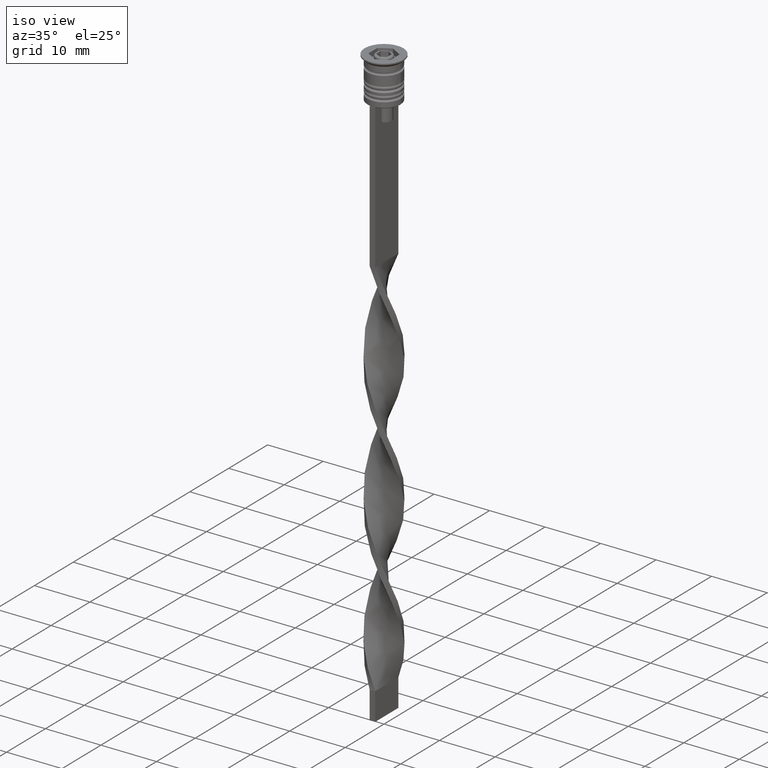
[diagram: clean part render]
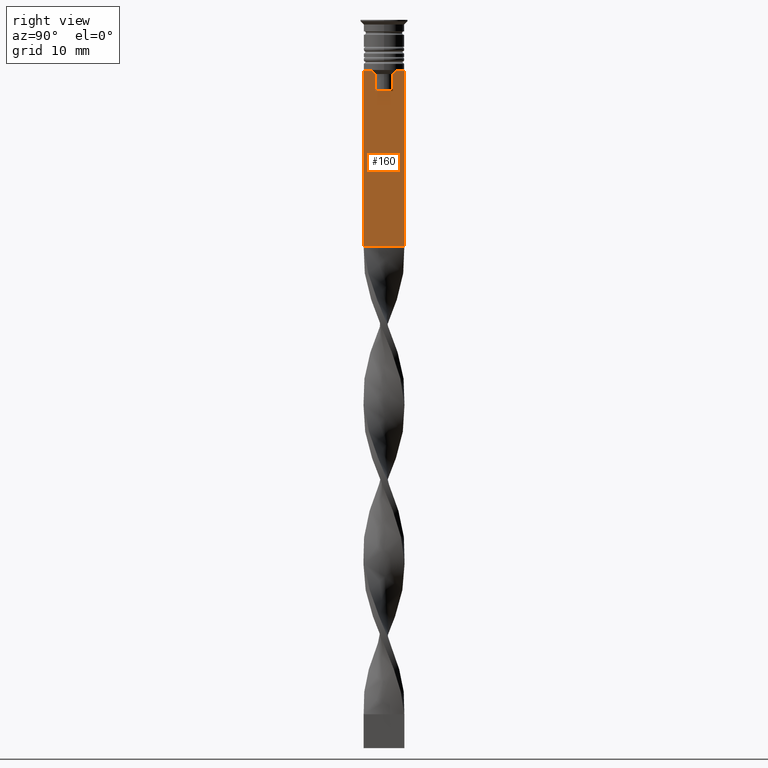
[diagram: tour spotlight — one face highlighted and labeled with its STEP entity id]
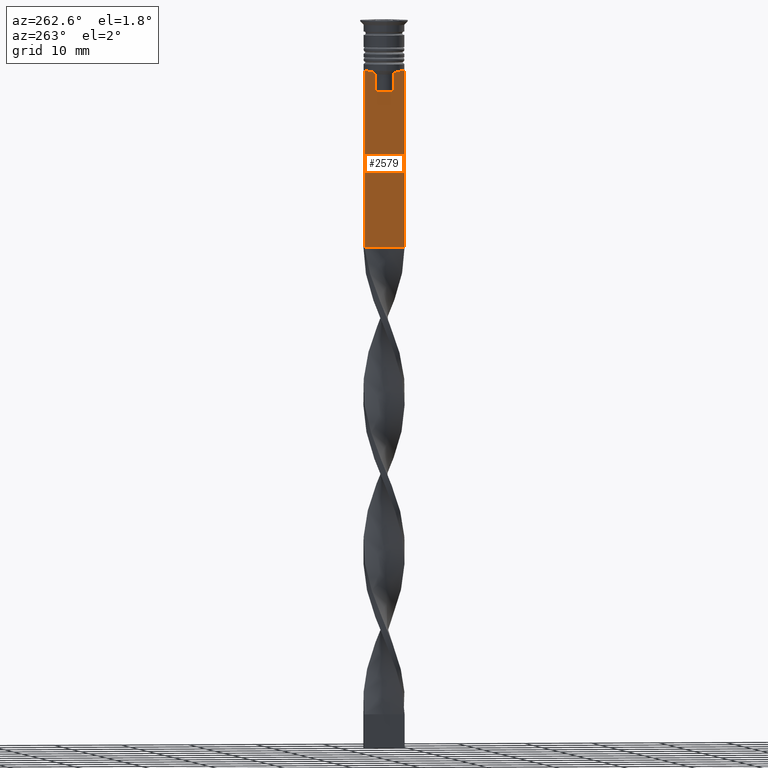
[diagram: tour spotlight — one face highlighted and labeled with its STEP entity id]
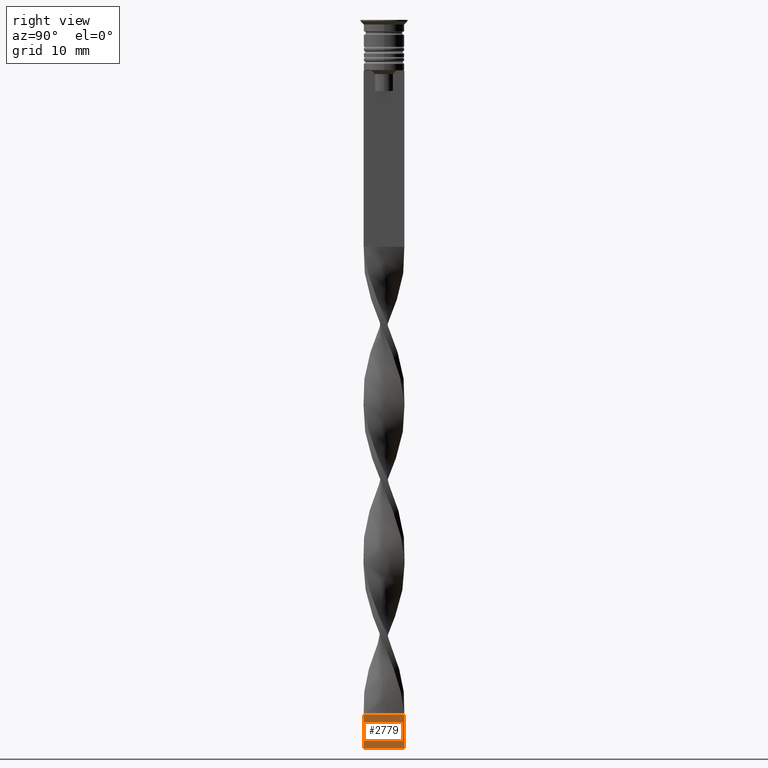
[diagram: tour spotlight — one face highlighted and labeled with its STEP entity id]
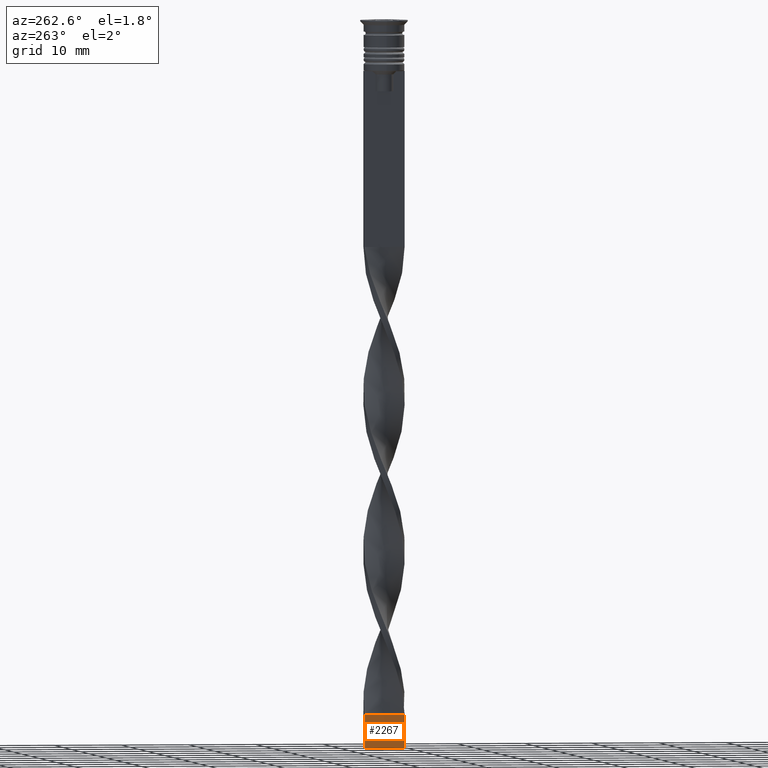
[diagram: tour spotlight — one face highlighted and labeled with its STEP entity id]
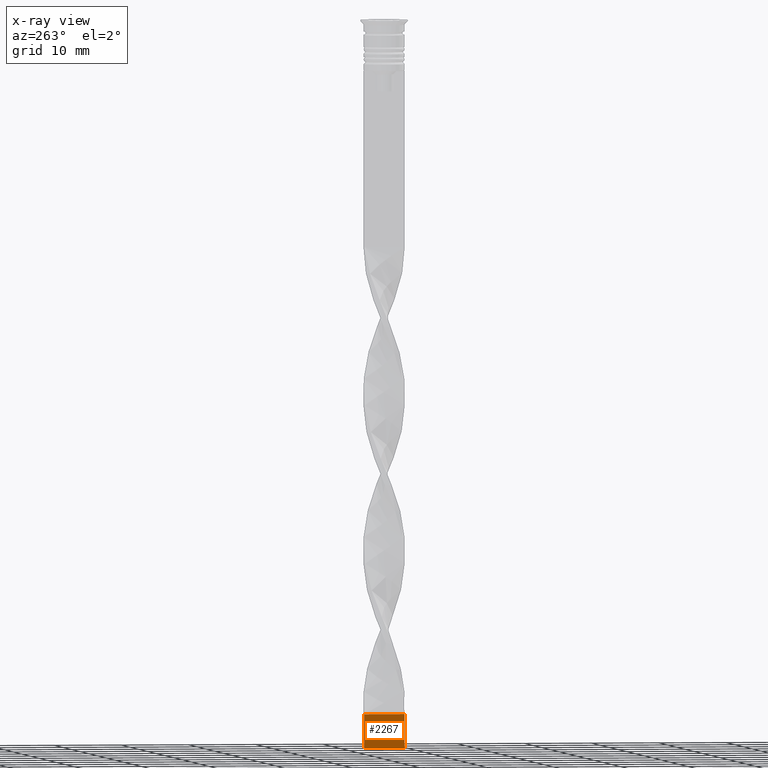
[diagram: x-ray of the same camera — body ghosted, this tour face saturated]
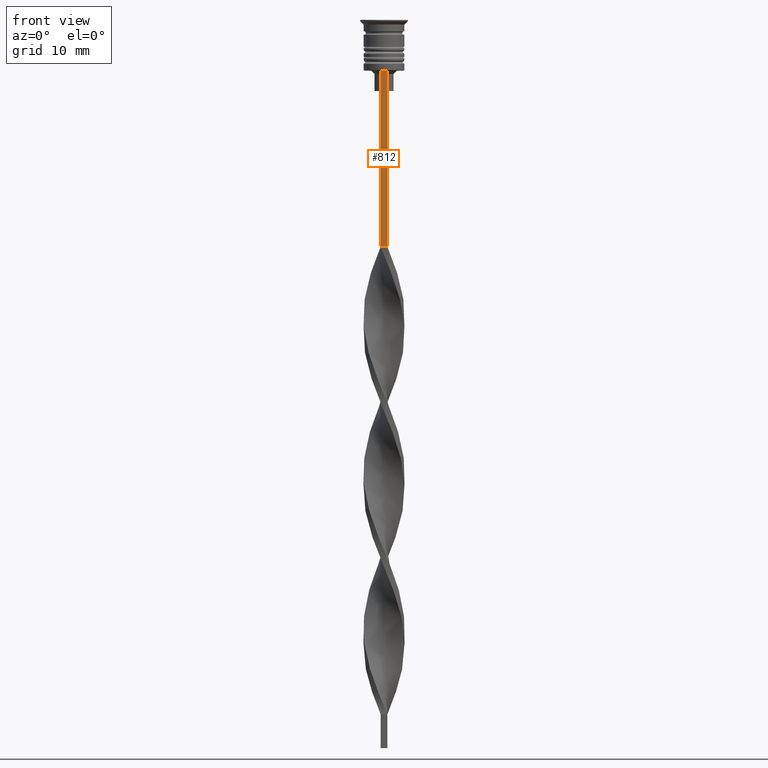
[diagram: tour spotlight — one face highlighted and labeled with its STEP entity id]
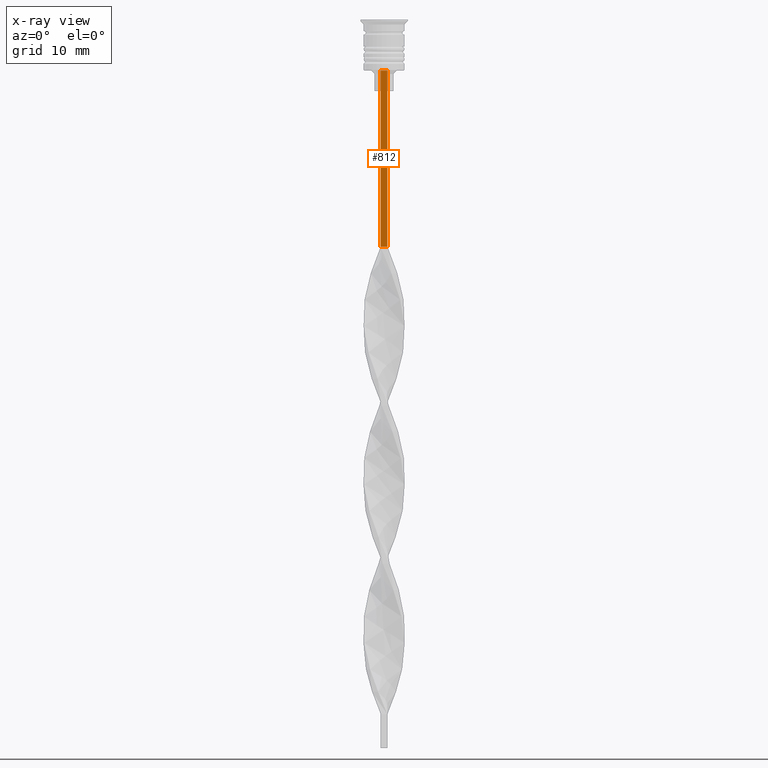
[diagram: x-ray of the same camera — body ghosted, this tour face saturated]
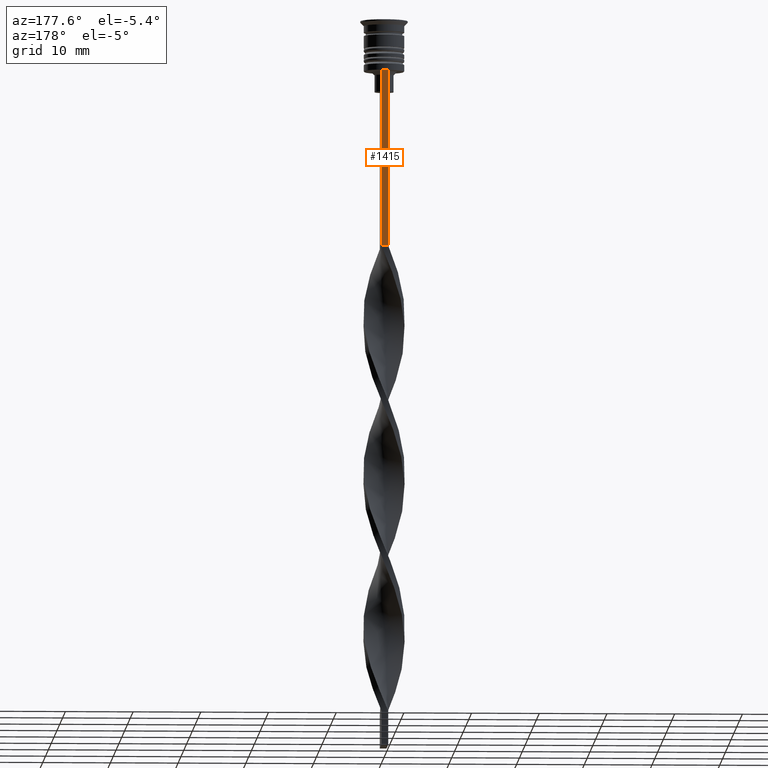
[diagram: tour spotlight — one face highlighted and labeled with its STEP entity id]
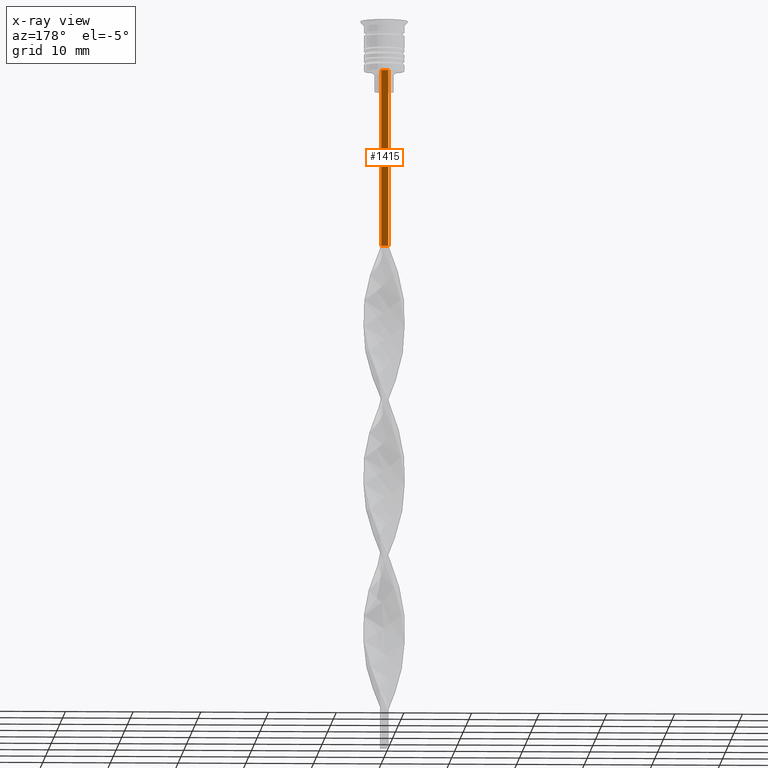
[diagram: x-ray of the same camera — body ghosted, this tour face saturated]
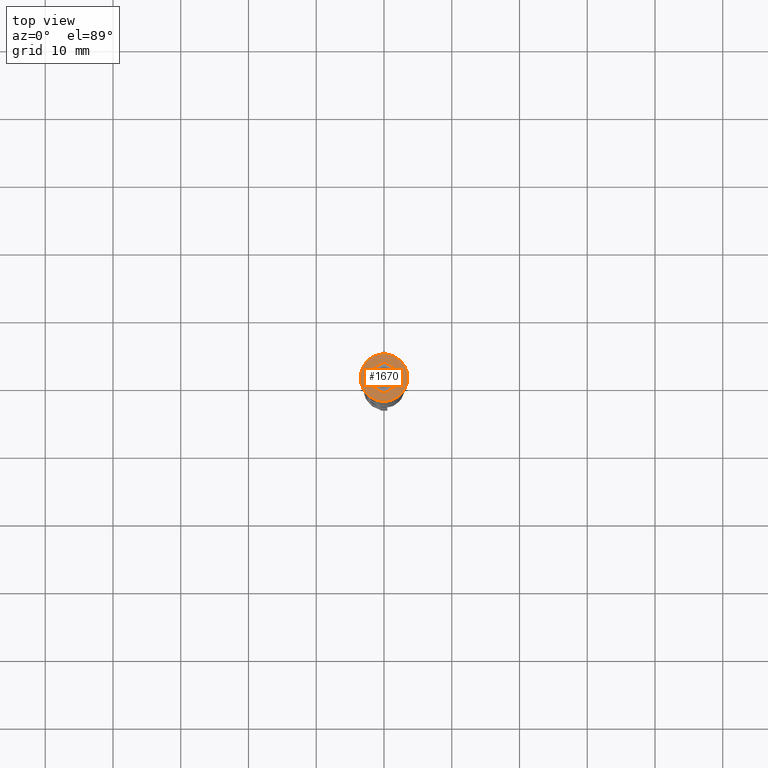
[diagram: tour spotlight — one face highlighted and labeled with its STEP entity id]
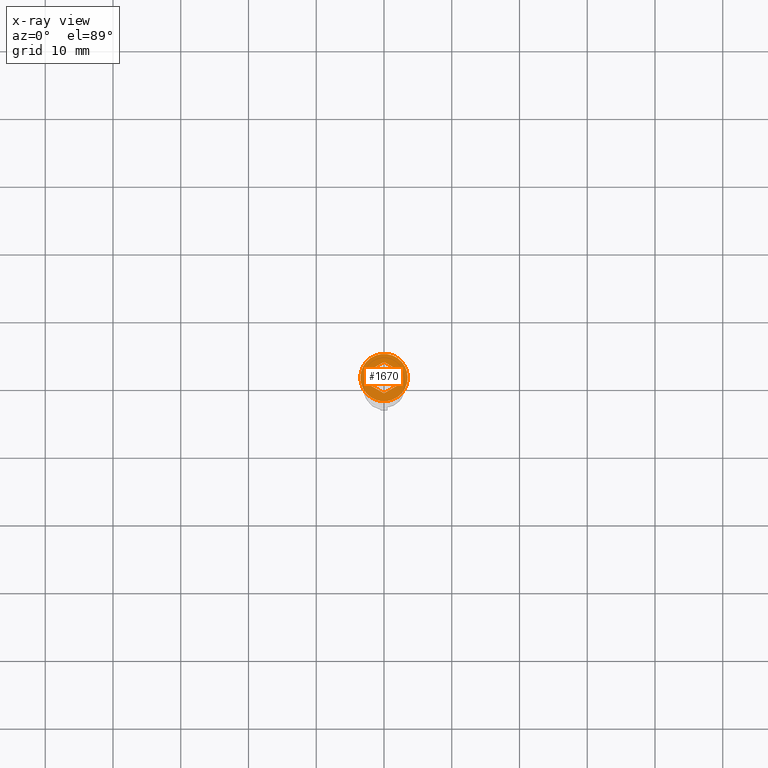
[diagram: x-ray of the same camera — body ghosted, this tour face saturated]
A machine part: a face-by-face anatomy tour. The part has 91 B-rep faces; the first image is the clean iso view, then the 7 largest visible faces are spotlighted one at a time (largest first), each with its STEP entity span.

Face 1 — right view, entity #160. In plain terms, the highlighted planar face has unit normal (-1, 0, 0).
Definition (entity closure, byte-faithful):
#29 = DIRECTION ( 'NONE',  ( 0.000000000000000000, -1.000000000000000000, 0.000000000000000000 ) ) ;
#160 = ADVANCED_FACE ( 'NONE', ( #1501 ), #2527, .F. ) ;
#168 = VERTEX_POINT ( 'NONE', #2937 ) ;
#180 = CARTESIAN_POINT ( 'NONE',  ( 0.4999999999999998890, -2.856571371417139904, -7.500000000000000000 ) ) ;
#188 = VECTOR ( 'NONE', #2503, 1000.000000000000000 ) ;
#268 = LINE ( 'NONE', #2890, #2197 ) ;
#274 = DIRECTION ( 'NONE',  ( 0.000000000000000000, 0.000000000000000000, 1.000000000000000000 ) ) ;
#307 = CARTESIAN_POINT ( 'NONE',  ( 0.4999999999999998890, -1.833030277982335754, -7.500000000000000000 ) ) ;
#345 = EDGE_CURVE ( 'NONE', #3175, #2554, #1795, .T. ) ;
#381 = LINE ( 'NONE', #1187, #188 ) ;
#398 = EDGE_CURVE ( 'NONE', #2392, #3263, #3216, .T. ) ;
#492 = DIRECTION ( 'NONE',  ( -0.000000000000000000, -0.000000000000000000, 1.000000000000000000 ) ) ;
#507 = CARTESIAN_POINT ( 'NONE',  ( 0.4999999999999998890, -1.307669683062199439, 0.000000000000000000 ) ) ;
#530 = DIRECTION ( 'NONE',  ( -1.000000000000000000, 0.000000000000000000, 0.000000000000000000 ) ) ;
#548 = CARTESIAN_POINT ( 'NONE',  ( 0.4999999999999998890, -3.000000000000000000, -33.50000000000000000 ) ) ;
#594 = CARTESIAN_POINT ( 'NONE',  ( 0.4999999999999998890, 1.833030277982335754, -7.500000000000000000 ) ) ;
#661 = CARTESIAN_POINT ( 'NONE',  ( 0.4999999999999998890, -3.000000000000000000, -7.500000000000000000 ) ) ;
#686 = CARTESIAN_POINT ( 'NONE',  ( 0.4999999999999998890, 3.000000000000000000, -7.500000000000000000 ) ) ;
#695 = DIRECTION ( 'NONE',  ( 0.000000000000000000, 0.000000000000000000, -1.000000000000000000 ) ) ;
#728 = VERTEX_POINT ( 'NONE', #548 ) ;
#766 = CARTESIAN_POINT ( 'NONE',  ( 0.4999999999999998890, 1.833030277982335754, -7.500000000000000000 ) ) ;
#791 = LINE ( 'NONE', #2345, #1020 ) ;
#841 = ORIENTED_EDGE ( 'NONE', *, *, #3189, .T. ) ;
#917 = CARTESIAN_POINT ( 'NONE',  ( 0.4999999999999998890, -1.484307477388859153, -7.835011508197190722 ) ) ;
#924 = CARTESIAN_POINT ( 'NONE',  ( 0.4999999999999998890, -1.307669683062199439, -10.49999999999999822 ) ) ;
#929 = CARTESIAN_POINT ( 'NONE',  ( 0.4999999999999998890, -3.000000000000000000, -1.417237469701779329 ) ) ;
#1020 = VECTOR ( 'NONE', #1856, 1000.000000000000000 ) ;
#1151 = ORIENTED_EDGE ( 'NONE', *, *, #1336, .T. ) ;
#1158 = ORIENTED_EDGE ( 'NONE', *, *, #2244, .T. ) ;
#1168 = VERTEX_POINT ( 'NONE', #686 ) ;
#1169 = EDGE_CURVE ( 'NONE', #168, #1688, #2330, .T. ) ;
#1187 = CARTESIAN_POINT ( 'NONE',  ( 0.4999999999999998890, -3.000000000000000000, -7.500000000000000000 ) ) ;
#1189 = LINE ( 'NONE', #661, #3073 ) ;
#1237 = DIRECTION ( 'NONE',  ( 0.000000000000000000, -1.000000000000000000, 0.000000000000000000 ) ) ;
#1240 = CARTESIAN_POINT ( 'NONE',  ( 0.4999999999999998890, -3.000000000000000000, -7.500000000000000000 ) ) ;
#1271 = EDGE_CURVE ( 'NONE', #3263, #168, #791, .T. ) ;
#1293 = CARTESIAN_POINT ( 'NONE',  ( 0.4999999999999998890, -1.833030277982335754, -7.500000000000000000 ) ) ;
#1327 = ORIENTED_EDGE ( 'NONE', *, *, #398, .T. ) ;
#1336 = EDGE_CURVE ( 'NONE', #1688, #2657, #1570, .T. ) ;
#1350 = VECTOR ( 'NONE', #695, 1000.000000000000000 ) ;
#1398 = VERTEX_POINT ( 'NONE', #1293 ) ;
#1405 = VECTOR ( 'NONE', #1237, 1000.000000000000000 ) ;
#1445 = LINE ( 'NONE', #2564, #2194 ) ;
#1495 = CARTESIAN_POINT ( 'NONE',  ( 0.4999999999999998890, -3.000000000000000000, -7.500000000000000000 ) ) ;
#1501 = FACE_OUTER_BOUND ( 'NONE', #2160, .T. ) ;
#1544 = ORIENTED_EDGE ( 'NONE', *, *, #3309, .T. ) ;
#1552 = ORIENTED_EDGE ( 'NONE', *, *, #2639, .T. ) ;
#1570 = LINE ( 'NONE', #507, #2137 ) ;
#1600 = CARTESIAN_POINT ( 'NONE',  ( 0.4999999999999998890, -1.307669683062199439, -8.000000000000000000 ) ) ;
#1646 = CARTESIAN_POINT ( 'NONE',  ( 0.4999999999999998890, -1.659011726860414093, -7.667884880598472286 ) ) ;
#1665 = VERTEX_POINT ( 'NONE', #3253 ) ;
#1688 = VERTEX_POINT ( 'NONE', #924 ) ;
#1710 = LINE ( 'NONE', #929, #1350 ) ;
#1726 = LINE ( 'NONE', #2567, #2189 ) ;
#1727 = ORIENTED_EDGE ( 'NONE', *, *, #1169, .T. ) ;
#1758 = CARTESIAN_POINT ( 'NONE',  ( 0.4999999999999998890, 1.659046061654642967, -7.667851756010362507 ) ) ;
#1795 = LINE ( 'NONE', #1495, #1405 ) ;
#1829 = CARTESIAN_POINT ( 'NONE',  ( 0.4999999999999998890, 1.484355510416485835, -7.834966642958598015 ) ) ;
#1856 = DIRECTION ( 'NONE',  ( 0.000000000000000000, 0.000000000000000000, -1.000000000000000000 ) ) ;
#1912 = VECTOR ( 'NONE', #3042, 1000.000000000000000 ) ;
#1972 = DIRECTION ( 'NONE',  ( 0.000000000000000000, -1.000000000000000000, 0.000000000000000000 ) ) ;
#2117 = ORIENTED_EDGE ( 'NONE', *, *, #3109, .T. ) ;
#2130 = DIRECTION ( 'NONE',  ( 0.000000000000000000, 1.000000000000000000, 0.000000000000000000 ) ) ;
#2137 = VECTOR ( 'NONE', #492, 1000.000000000000000 ) ;
#2160 = EDGE_LOOP ( 'NONE', ( #2117, #1327, #2524, #1727, #1151, #1158, #841, #2288, #2708, #1544, #3372, #1552 ) ) ;
#2189 = VECTOR ( 'NONE', #2588, 1000.000000000000000 ) ;
#2194 = VECTOR ( 'NONE', #1972, 1000.000000000000000 ) ;
#2197 = VECTOR ( 'NONE', #2130, 1000.000000000000000 ) ;
#2244 = EDGE_CURVE ( 'NONE', #2657, #1398, #3053, .T. ) ;
#2264 = CARTESIAN_POINT ( 'NONE',  ( 0.4999999999999998890, -3.000000000000000000, -1.417237469701779329 ) ) ;
#2286 = CARTESIAN_POINT ( 'NONE',  ( 0.4999999999999998890, 1.307669683062199439, -8.000000000000000000 ) ) ;
#2288 = ORIENTED_EDGE ( 'NONE', *, *, #345, .T. ) ;
#2330 = LINE ( 'NONE', #2815, #1912 ) ;
#2337 = CARTESIAN_POINT ( 'NONE',  ( 0.4999999999999998890, 2.856571371417139904, -7.500000000000000000 ) ) ;
#2345 = CARTESIAN_POINT ( 'NONE',  ( 0.4999999999999998890, 1.307669683062199439, 0.000000000000000000 ) ) ;
#2392 = VERTEX_POINT ( 'NONE', #594 ) ;
#2485 = EDGE_CURVE ( 'NONE', #1168, #1665, #1726, .T. ) ;
#2503 = DIRECTION ( 'NONE',  ( 0.000000000000000000, -1.000000000000000000, 0.000000000000000000 ) ) ;
#2524 = ORIENTED_EDGE ( 'NONE', *, *, #1271, .T. ) ;
#2527 = PLANE ( 'NONE',  #2798 ) ;
#2554 = VERTEX_POINT ( 'NONE', #1240 ) ;
#2564 = CARTESIAN_POINT ( 'NONE',  ( 0.4999999999999998890, -3.000000000000000000, -7.500000000000000000 ) ) ;
#2567 = CARTESIAN_POINT ( 'NONE',  ( 0.4999999999999998890, 3.000000000000000000, -1.417237469701779329 ) ) ;
#2588 = DIRECTION ( 'NONE',  ( 0.000000000000000000, 0.000000000000000000, -1.000000000000000000 ) ) ;
#2639 = EDGE_CURVE ( 'NONE', #1168, #3445, #1189, .T. ) ;
#2657 = VERTEX_POINT ( 'NONE', #1600 ) ;
#2708 = ORIENTED_EDGE ( 'NONE', *, *, #3105, .T. ) ;
#2730 = CARTESIAN_POINT ( 'NONE',  ( 0.4999999999999998890, -1.307669683062199439, -8.000000000000000000 ) ) ;
#2798 = AXIS2_PLACEMENT_3D ( 'NONE', #2264, #530, #274 ) ;
#2815 = CARTESIAN_POINT ( 'NONE',  ( 0.4999999999999998890, 1.399999999999997691, -10.49999999999999822 ) ) ;
#2824 = CARTESIAN_POINT ( 'NONE',  ( 0.4999999999999998890, 1.307669683062199439, -8.000000000000000000 ) ) ;
#2890 = CARTESIAN_POINT ( 'NONE',  ( 0.4999999999999998890, -3.000000000000000000, -33.50000000000000000 ) ) ;
#2937 = CARTESIAN_POINT ( 'NONE',  ( 0.4999999999999998890, 1.307669683062199439, -10.49999999999999822 ) ) ;
#3042 = DIRECTION ( 'NONE',  ( 0.000000000000000000, -1.000000000000000000, 0.000000000000000000 ) ) ;
#3053 = B_SPLINE_CURVE_WITH_KNOTS ( 'NONE', 3,
 ( #2730, #917, #1646, #307 ),
 .UNSPECIFIED., .F., .F.,
 ( 4, 4 ),
 ( 0.007225659348748082224, 0.007950554640278054835 ),
 .UNSPECIFIED. ) ;
#3073 = VECTOR ( 'NONE', #29, 1000.000000000000000 ) ;
#3105 = EDGE_CURVE ( 'NONE', #2554, #728, #1710, .T. ) ;
#3109 = EDGE_CURVE ( 'NONE', #3445, #2392, #1445, .T. ) ;
#3175 = VERTEX_POINT ( 'NONE', #180 ) ;
#3189 = EDGE_CURVE ( 'NONE', #1398, #3175, #381, .T. ) ;
#3216 = B_SPLINE_CURVE_WITH_KNOTS ( 'NONE', 3,
 ( #766, #1758, #1829, #2824 ),
 .UNSPECIFIED., .F., .F.,
 ( 4, 4 ),
 ( 0.003278537493109848298, 0.004003794023484941178 ),
 .UNSPECIFIED. ) ;
#3253 = CARTESIAN_POINT ( 'NONE',  ( 0.4999999999999998890, 3.000000000000000000, -33.50000000000000000 ) ) ;
#3263 = VERTEX_POINT ( 'NONE', #2286 ) ;
#3309 = EDGE_CURVE ( 'NONE', #728, #1665, #268, .T. ) ;
#3372 = ORIENTED_EDGE ( 'NONE', *, *, #2485, .F. ) ;
#3445 = VERTEX_POINT ( 'NONE', #2337 ) ;

Face 2 — auxiliary view, entity #2579. In plain terms, the highlighted planar face has unit normal (-1, 0, 0).
Definition (entity closure, byte-faithful):
#3 = EDGE_LOOP ( 'NONE', ( #2672, #466, #2398, #1394, #2028, #2642, #629, #1119, #449, #1406, #1081, #223 ) ) ;
#13 = LINE ( 'NONE', #1063, #1413 ) ;
#84 = LINE ( 'NONE', #2693, #1183 ) ;
#177 = CARTESIAN_POINT ( 'NONE',  ( -0.5000000000000001110, 1.307669683062199217, -10.49999999999999822 ) ) ;
#193 = CARTESIAN_POINT ( 'NONE',  ( -0.5000000000000001110, -1.659011726860414093, -7.667884880598472286 ) ) ;
#223 = ORIENTED_EDGE ( 'NONE', *, *, #2617, .F. ) ;
#263 = VERTEX_POINT ( 'NONE', #2401 ) ;
#425 = VERTEX_POINT ( 'NONE', #1774 ) ;
#433 = CARTESIAN_POINT ( 'NONE',  ( -0.5000000000000001110, -3.000000000000000000, -33.50000000000000000 ) ) ;
#441 = CARTESIAN_POINT ( 'NONE',  ( -0.5000000000000001110, -1.484307477388859153, -7.835011508197190722 ) ) ;
#449 = ORIENTED_EDGE ( 'NONE', *, *, #1086, .F. ) ;
#457 = VECTOR ( 'NONE', #3339, 1000.000000000000000 ) ;
#466 = ORIENTED_EDGE ( 'NONE', *, *, #1357, .F. ) ;
#499 = VERTEX_POINT ( 'NONE', #177 ) ;
#515 = VECTOR ( 'NONE', #2556, 1000.000000000000000 ) ;
#564 = CARTESIAN_POINT ( 'NONE',  ( -0.5000000000000001110, 1.659046061654642523, -7.667851756010361619 ) ) ;
#576 = DIRECTION ( 'NONE',  ( 0.000000000000000000, -1.000000000000000000, 0.000000000000000000 ) ) ;
#578 = VERTEX_POINT ( 'NONE', #3182 ) ;
#595 = VERTEX_POINT ( 'NONE', #1095 ) ;
#610 = CARTESIAN_POINT ( 'NONE',  ( -0.5000000000000001110, -3.000000000000000000, -1.417237469701779329 ) ) ;
#611 = EDGE_CURVE ( 'NONE', #662, #1055, #2358, .T. ) ;
#629 = ORIENTED_EDGE ( 'NONE', *, *, #1028, .F. ) ;
#639 = EDGE_CURVE ( 'NONE', #2489, #263, #2426, .T. ) ;
#658 = LINE ( 'NONE', #3086, #457 ) ;
#662 = VERTEX_POINT ( 'NONE', #2703 ) ;
#707 = CARTESIAN_POINT ( 'NONE',  ( -0.5000000000000001110, -1.307669683062199217, -8.000000000000000000 ) ) ;
#787 = VERTEX_POINT ( 'NONE', #2180 ) ;
#803 = CARTESIAN_POINT ( 'NONE',  ( -0.5000000000000001110, 1.484355510416485391, -7.834966642958598015 ) ) ;
#811 = CARTESIAN_POINT ( 'NONE',  ( -0.5000000000000001110, -3.000000000000000000, -7.500000000000000000 ) ) ;
#833 = CARTESIAN_POINT ( 'NONE',  ( -0.5000000000000001110, 1.307669683062199217, -8.000000000000000000 ) ) ;
#855 = VECTOR ( 'NONE', #2299, 1000.000000000000000 ) ;
#996 = DIRECTION ( 'NONE',  ( 0.000000000000000000, 0.000000000000000000, -1.000000000000000000 ) ) ;
#1028 = EDGE_CURVE ( 'NONE', #595, #425, #3315, .T. ) ;
#1055 = VERTEX_POINT ( 'NONE', #2575 ) ;
#1063 = CARTESIAN_POINT ( 'NONE',  ( -0.5000000000000001110, -3.000000000000000000, -7.500000000000000000 ) ) ;
#1064 = VERTEX_POINT ( 'NONE', #707 ) ;
#1081 = ORIENTED_EDGE ( 'NONE', *, *, #2991, .F. ) ;
#1086 = EDGE_CURVE ( 'NONE', #1064, #1446, #2394, .T. ) ;
#1095 = CARTESIAN_POINT ( 'NONE',  ( -0.5000000000000001110, -2.856571371417139904, -7.500000000000000000 ) ) ;
#1119 = ORIENTED_EDGE ( 'NONE', *, *, #2925, .F. ) ;
#1183 = VECTOR ( 'NONE', #1677, 1000.000000000000000 ) ;
#1211 = EDGE_CURVE ( 'NONE', #787, #1064, #3093, .T. ) ;
#1220 = CARTESIAN_POINT ( 'NONE',  ( -0.5000000000000001110, 1.307669683062199217, 0.000000000000000000 ) ) ;
#1255 = CARTESIAN_POINT ( 'NONE',  ( -0.5000000000000001110, -3.000000000000000000, -1.417237469701779329 ) ) ;
#1304 = CARTESIAN_POINT ( 'NONE',  ( -0.5000000000000001110, 3.000000000000000000, -1.417237469701779329 ) ) ;
#1346 = VECTOR ( 'NONE', #996, 1000.000000000000000 ) ;
#1357 = EDGE_CURVE ( 'NONE', #578, #662, #13, .T. ) ;
#1394 = ORIENTED_EDGE ( 'NONE', *, *, #639, .T. ) ;
#1406 = ORIENTED_EDGE ( 'NONE', *, *, #1211, .F. ) ;
#1413 = VECTOR ( 'NONE', #2059, 1000.000000000000000 ) ;
#1446 = VERTEX_POINT ( 'NONE', #2340 ) ;
#1484 = DIRECTION ( 'NONE',  ( -1.000000000000000000, 0.000000000000000000, 0.000000000000000000 ) ) ;
#1489 = CARTESIAN_POINT ( 'NONE',  ( -0.5000000000000001110, -3.000000000000000000, -7.500000000000000000 ) ) ;
#1497 = CARTESIAN_POINT ( 'NONE',  ( -0.5000000000000001110, 3.000000000000000000, -7.500000000000000000 ) ) ;
#1677 = DIRECTION ( 'NONE',  ( 0.000000000000000000, -1.000000000000000000, 0.000000000000000000 ) ) ;
#1680 = LINE ( 'NONE', #610, #1848 ) ;
#1741 = VECTOR ( 'NONE', #2882, 1000.000000000000000 ) ;
#1774 = CARTESIAN_POINT ( 'NONE',  ( -0.5000000000000001110, -3.000000000000000000, -7.500000000000000000 ) ) ;
#1776 = LINE ( 'NONE', #1220, #1346 ) ;
#1827 = CARTESIAN_POINT ( 'NONE',  ( -0.5000000000000001110, 1.833030277982335532, -7.500000000000000000 ) ) ;
#1848 = VECTOR ( 'NONE', #2175, 1000.000000000000000 ) ;
#1851 = VECTOR ( 'NONE', #576, 1000.000000000000000 ) ;
#1936 = LINE ( 'NONE', #2173, #1851 ) ;
#2027 = FACE_OUTER_BOUND ( 'NONE', #3, .T. ) ;
#2028 = ORIENTED_EDGE ( 'NONE', *, *, #3157, .F. ) ;
#2047 = EDGE_CURVE ( 'NONE', #2489, #578, #2918, .T. ) ;
#2059 = DIRECTION ( 'NONE',  ( 0.000000000000000000, -1.000000000000000000, 0.000000000000000000 ) ) ;
#2173 = CARTESIAN_POINT ( 'NONE',  ( -0.5000000000000001110, 1.399999999999997691, -10.49999999999999822 ) ) ;
#2175 = DIRECTION ( 'NONE',  ( 0.000000000000000000, 0.000000000000000000, -1.000000000000000000 ) ) ;
#2180 = CARTESIAN_POINT ( 'NONE',  ( -0.5000000000000001110, -1.307669683062199217, -10.49999999999999822 ) ) ;
#2299 = DIRECTION ( 'NONE',  ( 0.000000000000000000, -1.000000000000000000, 0.000000000000000000 ) ) ;
#2318 = CARTESIAN_POINT ( 'NONE',  ( -0.5000000000000001110, -1.833030277982335532, -7.500000000000000000 ) ) ;
#2324 = EDGE_CURVE ( 'NONE', #425, #3248, #1680, .T. ) ;
#2340 = CARTESIAN_POINT ( 'NONE',  ( -0.5000000000000001110, -1.833030277982335532, -7.500000000000000000 ) ) ;
#2358 = B_SPLINE_CURVE_WITH_KNOTS ( 'NONE', 3,
 ( #1827, #564, #803, #833 ),
 .UNSPECIFIED., .F., .F.,
 ( 4, 4 ),
 ( 0.003278537493109840491, 0.004003794023484932504 ),
 .UNSPECIFIED. ) ;
#2388 = DIRECTION ( 'NONE',  ( 0.000000000000000000, 0.000000000000000000, -1.000000000000000000 ) ) ;
#2394 = B_SPLINE_CURVE_WITH_KNOTS ( 'NONE', 3,
 ( #2832, #441, #193, #2318 ),
 .UNSPECIFIED., .F., .F.,
 ( 4, 4 ),
 ( 0.007225659348748070081, 0.007950554640278040958 ),
 .UNSPECIFIED. ) ;
#2398 = ORIENTED_EDGE ( 'NONE', *, *, #2047, .F. ) ;
#2401 = CARTESIAN_POINT ( 'NONE',  ( -0.5000000000000001110, 3.000000000000000000, -33.50000000000000000 ) ) ;
#2426 = LINE ( 'NONE', #1304, #2747 ) ;
#2489 = VERTEX_POINT ( 'NONE', #1497 ) ;
#2538 = PLANE ( 'NONE',  #2904 ) ;
#2556 = DIRECTION ( 'NONE',  ( -0.000000000000000000, -0.000000000000000000, 1.000000000000000000 ) ) ;
#2575 = CARTESIAN_POINT ( 'NONE',  ( -0.5000000000000001110, 1.307669683062199217, -8.000000000000000000 ) ) ;
#2579 = ADVANCED_FACE ( 'NONE', ( #2027 ), #2538, .T. ) ;
#2617 = EDGE_CURVE ( 'NONE', #1055, #499, #1776, .T. ) ;
#2642 = ORIENTED_EDGE ( 'NONE', *, *, #2324, .F. ) ;
#2672 = ORIENTED_EDGE ( 'NONE', *, *, #611, .F. ) ;
#2693 = CARTESIAN_POINT ( 'NONE',  ( -0.5000000000000001110, -3.000000000000000000, -7.500000000000000000 ) ) ;
#2703 = CARTESIAN_POINT ( 'NONE',  ( -0.5000000000000001110, 1.833030277982335532, -7.500000000000000000 ) ) ;
#2747 = VECTOR ( 'NONE', #2388, 1000.000000000000000 ) ;
#2832 = CARTESIAN_POINT ( 'NONE',  ( -0.5000000000000001110, -1.307669683062199217, -8.000000000000000000 ) ) ;
#2882 = DIRECTION ( 'NONE',  ( 0.000000000000000000, -1.000000000000000000, 0.000000000000000000 ) ) ;
#2904 = AXIS2_PLACEMENT_3D ( 'NONE', #1255, #1484, #3090 ) ;
#2918 = LINE ( 'NONE', #811, #1741 ) ;
#2925 = EDGE_CURVE ( 'NONE', #1446, #595, #84, .T. ) ;
#2991 = EDGE_CURVE ( 'NONE', #499, #787, #1936, .T. ) ;
#3086 = CARTESIAN_POINT ( 'NONE',  ( -0.5000000000000001110, -3.000000000000000000, -33.50000000000000000 ) ) ;
#3090 = DIRECTION ( 'NONE',  ( 0.000000000000000000, 0.000000000000000000, 1.000000000000000000 ) ) ;
#3093 = LINE ( 'NONE', #3348, #515 ) ;
#3157 = EDGE_CURVE ( 'NONE', #3248, #263, #658, .T. ) ;
#3182 = CARTESIAN_POINT ( 'NONE',  ( -0.5000000000000001110, 2.856571371417139904, -7.500000000000000000 ) ) ;
#3248 = VERTEX_POINT ( 'NONE', #433 ) ;
#3315 = LINE ( 'NONE', #1489, #855 ) ;
#3339 = DIRECTION ( 'NONE',  ( 0.000000000000000000, 1.000000000000000000, 0.000000000000000000 ) ) ;
#3348 = CARTESIAN_POINT ( 'NONE',  ( -0.5000000000000001110, -1.307669683062199217, 0.000000000000000000 ) ) ;

Face 3 — right view, entity #2779. In plain terms, the highlighted planar face has unit normal (-1, 0, 0).
Definition (entity closure, byte-faithful):
#5 = CARTESIAN_POINT ( 'NONE',  ( 0.4999999999999997780, -3.000000000000000000, -107.5000000000000142 ) ) ;
#176 = EDGE_CURVE ( 'NONE', #2243, #2338, #1051, .T. ) ;
#189 = CARTESIAN_POINT ( 'NONE',  ( 0.5000000000000002220, 1.000000000000000000, -102.5000000000000142 ) ) ;
#272 = CARTESIAN_POINT ( 'NONE',  ( 0.5000000000000004441, 3.000000000000000000, -107.5000000000000142 ) ) ;
#351 = DIRECTION ( 'NONE',  ( -1.000000000000000000, 1.084202172485504434E-16, 0.000000000000000000 ) ) ;
#627 = VECTOR ( 'NONE', #1312, 1000.000000000000000 ) ;
#633 = CARTESIAN_POINT ( 'NONE',  ( 0.5000000000000004441, 3.000000000000000000, -107.5000000000000142 ) ) ;
#717 = EDGE_CURVE ( 'NONE', #1334, #1319, #781, .T. ) ;
#741 = DIRECTION ( 'NONE',  ( -0.000000000000000000, -0.000000000000000000, 1.000000000000000000 ) ) ;
#781 = LINE ( 'NONE', #5, #2967 ) ;
#1051 = LINE ( 'NONE', #2623, #1287 ) ;
#1234 = AXIS2_PLACEMENT_3D ( 'NONE', #3001, #351, #1421 ) ;
#1287 = VECTOR ( 'NONE', #741, 1000.000000000000000 ) ;
#1312 = DIRECTION ( 'NONE',  ( -1.084202172485504434E-16, -1.000000000000000000, 0.000000000000000000 ) ) ;
#1319 = VERTEX_POINT ( 'NONE', #2917 ) ;
#1334 = VERTEX_POINT ( 'NONE', #1835 ) ;
#1340 = EDGE_CURVE ( 'NONE', #2243, #1334, #1343, .T. ) ;
#1343 = LINE ( 'NONE', #272, #627 ) ;
#1421 = DIRECTION ( 'NONE',  ( -1.084202172485504434E-16, -1.000000000000000000, 0.000000000000000000 ) ) ;
#1623 = EDGE_LOOP ( 'NONE', ( #3371, #2465, #1762, #2775 ) ) ;
#1762 = ORIENTED_EDGE ( 'NONE', *, *, #1340, .F. ) ;
#1835 = CARTESIAN_POINT ( 'NONE',  ( 0.4999999999999997780, -3.000000000000000000, -107.5000000000000142 ) ) ;
#1937 = EDGE_CURVE ( 'NONE', #2338, #1319, #2980, .T. ) ;
#2207 = FACE_OUTER_BOUND ( 'NONE', #1623, .T. ) ;
#2243 = VERTEX_POINT ( 'NONE', #633 ) ;
#2338 = VERTEX_POINT ( 'NONE', #2435 ) ;
#2404 = DIRECTION ( 'NONE',  ( -0.000000000000000000, -0.000000000000000000, 1.000000000000000000 ) ) ;
#2435 = CARTESIAN_POINT ( 'NONE',  ( 0.5000000000000004441, 3.000000000000000000, -102.5000000000000142 ) ) ;
#2465 = ORIENTED_EDGE ( 'NONE', *, *, #717, .F. ) ;
#2557 = CARTESIAN_POINT ( 'NONE',  ( 0.5000000000000004441, 3.000000000000000000, -102.5000000000000142 ) ) ;
#2623 = CARTESIAN_POINT ( 'NONE',  ( 0.5000000000000004441, 3.000000000000000000, -107.5000000000000142 ) ) ;
#2775 = ORIENTED_EDGE ( 'NONE', *, *, #176, .T. ) ;
#2779 = ADVANCED_FACE ( 'NONE', ( #2207 ), #3258, .F. ) ;
#2917 = CARTESIAN_POINT ( 'NONE',  ( 0.4999999999999997780, -3.000000000000000000, -102.5000000000000142 ) ) ;
#2967 = VECTOR ( 'NONE', #2404, 1000.000000000000000 ) ;
#2980 = B_SPLINE_CURVE_WITH_KNOTS ( 'NONE', 3,
 ( #2557, #189, #3108, #3125 ),
 .UNSPECIFIED., .F., .F.,
 ( 4, 4 ),
 ( 0.000000000000000000, 1.000000000000000000 ),
 .UNSPECIFIED. ) ;
#3001 = CARTESIAN_POINT ( 'NONE',  ( 0.5000000000000004441, 3.000000000000000000, -107.5000000000000142 ) ) ;
#3108 = CARTESIAN_POINT ( 'NONE',  ( 0.5000000000000000000, -1.000000000000000000, -102.5000000000000142 ) ) ;
#3125 = CARTESIAN_POINT ( 'NONE',  ( 0.4999999999999997780, -3.000000000000000000, -102.5000000000000142 ) ) ;
#3258 = PLANE ( 'NONE',  #1234 ) ;
#3371 = ORIENTED_EDGE ( 'NONE', *, *, #1937, .T. ) ;

Face 4 — auxiliary view, entity #2267. An x-ray twin of the same camera follows (body ghosted, this face saturated) — the face is partly hidden behind the body. In plain terms, the highlighted planar face has unit normal (1, -0, 0).
Definition (entity closure, byte-faithful):
#4 = ORIENTED_EDGE ( 'NONE', *, *, #705, .T. ) ;
#104 = PLANE ( 'NONE',  #3288 ) ;
#258 = CARTESIAN_POINT ( 'NONE',  ( -0.4999999999999995559, 3.000000000000000000, -107.5000000000000142 ) ) ;
#346 = VECTOR ( 'NONE', #2077, 1000.000000000000000 ) ;
#389 = B_SPLINE_CURVE_WITH_KNOTS ( 'NONE', 3,
 ( #520, #2650, #1320, #2666 ),
 .UNSPECIFIED., .F., .F.,
 ( 4, 4 ),
 ( 0.000000000000000000, 1.000000000000000000 ),
 .UNSPECIFIED. ) ;
#395 = LINE ( 'NONE', #1217, #797 ) ;
#520 = CARTESIAN_POINT ( 'NONE',  ( -0.5000000000000002220, -3.000000000000000000, -102.5000000000000142 ) ) ;
#529 = EDGE_CURVE ( 'NONE', #2041, #3367, #2547, .T. ) ;
#546 = VERTEX_POINT ( 'NONE', #3373 ) ;
#703 = CARTESIAN_POINT ( 'NONE',  ( -0.5000000000000002220, -3.000000000000000000, -107.5000000000000142 ) ) ;
#705 = EDGE_CURVE ( 'NONE', #546, #3367, #389, .T. ) ;
#751 = EDGE_LOOP ( 'NONE', ( #4, #1922, #2699, #2765 ) ) ;
#797 = VECTOR ( 'NONE', #3306, 1000.000000000000000 ) ;
#1156 = FACE_OUTER_BOUND ( 'NONE', #751, .T. ) ;
#1216 = VERTEX_POINT ( 'NONE', #703 ) ;
#1217 = CARTESIAN_POINT ( 'NONE',  ( -0.5000000000000002220, -3.000000000000000000, -107.5000000000000142 ) ) ;
#1320 = CARTESIAN_POINT ( 'NONE',  ( -0.4999999999999997780, 1.000000000000000000, -102.5000000000000142 ) ) ;
#1384 = DIRECTION ( 'NONE',  ( 1.000000000000000000, -1.084202172485504434E-16, 0.000000000000000000 ) ) ;
#1437 = CARTESIAN_POINT ( 'NONE',  ( -0.5000000000000002220, -3.000000000000000000, -107.5000000000000142 ) ) ;
#1546 = LINE ( 'NONE', #2671, #346 ) ;
#1922 = ORIENTED_EDGE ( 'NONE', *, *, #529, .F. ) ;
#1939 = DIRECTION ( 'NONE',  ( 1.084202172485504434E-16, 1.000000000000000000, 0.000000000000000000 ) ) ;
#2041 = VERTEX_POINT ( 'NONE', #258 ) ;
#2077 = DIRECTION ( 'NONE',  ( -0.000000000000000000, -0.000000000000000000, 1.000000000000000000 ) ) ;
#2267 = ADVANCED_FACE ( 'NONE', ( #1156 ), #104, .F. ) ;
#2547 = LINE ( 'NONE', #3065, #2571 ) ;
#2571 = VECTOR ( 'NONE', #2580, 1000.000000000000000 ) ;
#2580 = DIRECTION ( 'NONE',  ( -0.000000000000000000, -0.000000000000000000, 1.000000000000000000 ) ) ;
#2650 = CARTESIAN_POINT ( 'NONE',  ( -0.5000000000000000000, -1.000000000000000000, -102.5000000000000142 ) ) ;
#2666 = CARTESIAN_POINT ( 'NONE',  ( -0.4999999999999995559, 3.000000000000000000, -102.5000000000000142 ) ) ;
#2671 = CARTESIAN_POINT ( 'NONE',  ( -0.5000000000000002220, -3.000000000000000000, -107.5000000000000142 ) ) ;
#2690 = EDGE_CURVE ( 'NONE', #1216, #546, #1546, .T. ) ;
#2699 = ORIENTED_EDGE ( 'NONE', *, *, #3255, .F. ) ;
#2765 = ORIENTED_EDGE ( 'NONE', *, *, #2690, .T. ) ;
#2873 = CARTESIAN_POINT ( 'NONE',  ( -0.4999999999999995559, 3.000000000000000000, -102.5000000000000142 ) ) ;
#3065 = CARTESIAN_POINT ( 'NONE',  ( -0.4999999999999995559, 3.000000000000000000, -107.5000000000000142 ) ) ;
#3255 = EDGE_CURVE ( 'NONE', #1216, #2041, #395, .T. ) ;
#3288 = AXIS2_PLACEMENT_3D ( 'NONE', #1437, #1384, #1939 ) ;
#3306 = DIRECTION ( 'NONE',  ( 1.084202172485504434E-16, 1.000000000000000000, 0.000000000000000000 ) ) ;
#3367 = VERTEX_POINT ( 'NONE', #2873 ) ;
#3373 = CARTESIAN_POINT ( 'NONE',  ( -0.5000000000000002220, -3.000000000000000000, -102.5000000000000142 ) ) ;

Face 5 — front view, entity #812. An x-ray twin of the same camera follows (body ghosted, this face saturated) — the face is partly hidden behind the body. In plain terms, the highlighted planar face has unit normal (0, -1, -0).
Definition (entity closure, byte-faithful):
#92 = DIRECTION ( 'NONE',  ( 0.000000000000000000, -1.000000000000000000, -0.000000000000000000 ) ) ;
#425 = VERTEX_POINT ( 'NONE', #1774 ) ;
#433 = CARTESIAN_POINT ( 'NONE',  ( -0.5000000000000001110, -3.000000000000000000, -33.50000000000000000 ) ) ;
#541 = ORIENTED_EDGE ( 'NONE', *, *, #2665, .F. ) ;
#548 = CARTESIAN_POINT ( 'NONE',  ( 0.4999999999999998890, -3.000000000000000000, -33.50000000000000000 ) ) ;
#601 = FACE_OUTER_BOUND ( 'NONE', #2897, .T. ) ;
#610 = CARTESIAN_POINT ( 'NONE',  ( -0.5000000000000001110, -3.000000000000000000, -1.417237469701779329 ) ) ;
#620 = DIRECTION ( 'NONE',  ( 0.000000000000000000, 0.000000000000000000, -1.000000000000000000 ) ) ;
#695 = DIRECTION ( 'NONE',  ( 0.000000000000000000, 0.000000000000000000, -1.000000000000000000 ) ) ;
#728 = VERTEX_POINT ( 'NONE', #548 ) ;
#812 = ADVANCED_FACE ( 'NONE', ( #601 ), #1704, .T. ) ;
#929 = CARTESIAN_POINT ( 'NONE',  ( 0.4999999999999998890, -3.000000000000000000, -1.417237469701779329 ) ) ;
#940 = EDGE_CURVE ( 'NONE', #728, #3248, #2233, .T. ) ;
#1014 = CARTESIAN_POINT ( 'NONE',  ( 0.4999999999999998890, -3.000000000000000000, -7.500000000000000000 ) ) ;
#1240 = CARTESIAN_POINT ( 'NONE',  ( 0.4999999999999998890, -3.000000000000000000, -7.500000000000000000 ) ) ;
#1350 = VECTOR ( 'NONE', #695, 1000.000000000000000 ) ;
#1562 = VECTOR ( 'NONE', #2095, 1000.000000000000000 ) ;
#1680 = LINE ( 'NONE', #610, #1848 ) ;
#1704 = PLANE ( 'NONE',  #1736 ) ;
#1710 = LINE ( 'NONE', #929, #1350 ) ;
#1736 = AXIS2_PLACEMENT_3D ( 'NONE', #3231, #92, #620 ) ;
#1774 = CARTESIAN_POINT ( 'NONE',  ( -0.5000000000000001110, -3.000000000000000000, -7.500000000000000000 ) ) ;
#1848 = VECTOR ( 'NONE', #2175, 1000.000000000000000 ) ;
#1858 = ORIENTED_EDGE ( 'NONE', *, *, #3105, .F. ) ;
#2095 = DIRECTION ( 'NONE',  ( 1.000000000000000000, 0.000000000000000000, 0.000000000000000000 ) ) ;
#2135 = LINE ( 'NONE', #1014, #1562 ) ;
#2175 = DIRECTION ( 'NONE',  ( 0.000000000000000000, 0.000000000000000000, -1.000000000000000000 ) ) ;
#2233 = LINE ( 'NONE', #3283, #2469 ) ;
#2295 = ORIENTED_EDGE ( 'NONE', *, *, #2324, .T. ) ;
#2324 = EDGE_CURVE ( 'NONE', #425, #3248, #1680, .T. ) ;
#2469 = VECTOR ( 'NONE', #2866, 1000.000000000000000 ) ;
#2554 = VERTEX_POINT ( 'NONE', #1240 ) ;
#2665 = EDGE_CURVE ( 'NONE', #425, #2554, #2135, .T. ) ;
#2757 = ORIENTED_EDGE ( 'NONE', *, *, #940, .F. ) ;
#2866 = DIRECTION ( 'NONE',  ( -1.000000000000000000, 0.000000000000000000, 0.000000000000000000 ) ) ;
#2897 = EDGE_LOOP ( 'NONE', ( #541, #2295, #2757, #1858 ) ) ;
#3105 = EDGE_CURVE ( 'NONE', #2554, #728, #1710, .T. ) ;
#3231 = CARTESIAN_POINT ( 'NONE',  ( 0.4999999999999998890, -3.000000000000000000, -1.417237469701779329 ) ) ;
#3248 = VERTEX_POINT ( 'NONE', #433 ) ;
#3283 = CARTESIAN_POINT ( 'NONE',  ( 0.4999999999999998890, -3.000000000000000000, -33.50000000000000000 ) ) ;

Face 6 — auxiliary view, entity #1415. An x-ray twin of the same camera follows (body ghosted, this face saturated) — the face is partly hidden behind the body. In plain terms, the highlighted planar face has unit normal (0, -1, -0).
Definition (entity closure, byte-faithful):
#58 = DIRECTION ( 'NONE',  ( 0.000000000000000000, 0.000000000000000000, -1.000000000000000000 ) ) ;
#263 = VERTEX_POINT ( 'NONE', #2401 ) ;
#352 = ORIENTED_EDGE ( 'NONE', *, *, #2920, .T. ) ;
#357 = DIRECTION ( 'NONE',  ( 0.000000000000000000, -1.000000000000000000, -0.000000000000000000 ) ) ;
#514 = VECTOR ( 'NONE', #3275, 1000.000000000000000 ) ;
#525 = EDGE_CURVE ( 'NONE', #1665, #263, #2050, .T. ) ;
#619 = VECTOR ( 'NONE', #1810, 1000.000000000000000 ) ;
#639 = EDGE_CURVE ( 'NONE', #2489, #263, #2426, .T. ) ;
#686 = CARTESIAN_POINT ( 'NONE',  ( 0.4999999999999998890, 3.000000000000000000, -7.500000000000000000 ) ) ;
#1168 = VERTEX_POINT ( 'NONE', #686 ) ;
#1304 = CARTESIAN_POINT ( 'NONE',  ( -0.5000000000000001110, 3.000000000000000000, -1.417237469701779329 ) ) ;
#1341 = LINE ( 'NONE', #2468, #514 ) ;
#1415 = ADVANCED_FACE ( 'NONE', ( #3277 ), #1423, .F. ) ;
#1423 = PLANE ( 'NONE',  #1626 ) ;
#1497 = CARTESIAN_POINT ( 'NONE',  ( -0.5000000000000001110, 3.000000000000000000, -7.500000000000000000 ) ) ;
#1626 = AXIS2_PLACEMENT_3D ( 'NONE', #2972, #357, #58 ) ;
#1665 = VERTEX_POINT ( 'NONE', #3253 ) ;
#1726 = LINE ( 'NONE', #2567, #2189 ) ;
#1810 = DIRECTION ( 'NONE',  ( -1.000000000000000000, 0.000000000000000000, 0.000000000000000000 ) ) ;
#2050 = LINE ( 'NONE', #2068, #619 ) ;
#2068 = CARTESIAN_POINT ( 'NONE',  ( 0.4999999999999998890, 3.000000000000000000, -33.50000000000000000 ) ) ;
#2189 = VECTOR ( 'NONE', #2588, 1000.000000000000000 ) ;
#2388 = DIRECTION ( 'NONE',  ( 0.000000000000000000, 0.000000000000000000, -1.000000000000000000 ) ) ;
#2401 = CARTESIAN_POINT ( 'NONE',  ( -0.5000000000000001110, 3.000000000000000000, -33.50000000000000000 ) ) ;
#2426 = LINE ( 'NONE', #1304, #2747 ) ;
#2468 = CARTESIAN_POINT ( 'NONE',  ( 0.4999999999999998890, 3.000000000000000000, -7.500000000000000000 ) ) ;
#2485 = EDGE_CURVE ( 'NONE', #1168, #1665, #1726, .T. ) ;
#2489 = VERTEX_POINT ( 'NONE', #1497 ) ;
#2567 = CARTESIAN_POINT ( 'NONE',  ( 0.4999999999999998890, 3.000000000000000000, -1.417237469701779329 ) ) ;
#2588 = DIRECTION ( 'NONE',  ( 0.000000000000000000, 0.000000000000000000, -1.000000000000000000 ) ) ;
#2595 = ORIENTED_EDGE ( 'NONE', *, *, #525, .T. ) ;
#2747 = VECTOR ( 'NONE', #2388, 1000.000000000000000 ) ;
#2920 = EDGE_CURVE ( 'NONE', #2489, #1168, #1341, .T. ) ;
#2972 = CARTESIAN_POINT ( 'NONE',  ( 0.4999999999999998890, 3.000000000000000000, -1.417237469701779329 ) ) ;
#3120 = ORIENTED_EDGE ( 'NONE', *, *, #639, .F. ) ;
#3207 = ORIENTED_EDGE ( 'NONE', *, *, #2485, .T. ) ;
#3253 = CARTESIAN_POINT ( 'NONE',  ( 0.4999999999999998890, 3.000000000000000000, -33.50000000000000000 ) ) ;
#3275 = DIRECTION ( 'NONE',  ( 1.000000000000000000, 0.000000000000000000, 0.000000000000000000 ) ) ;
#3277 = FACE_OUTER_BOUND ( 'NONE', #3423, .T. ) ;
#3423 = EDGE_LOOP ( 'NONE', ( #3120, #352, #3207, #2595 ) ) ;

Face 7 — top view, entity #1670. An x-ray twin of the same camera follows (body ghosted, this face saturated) — the face is partly hidden behind the body. In plain terms, the highlighted planar face has unit normal (0, -0, 1).
Definition (entity closure, byte-faithful):
#62 = VERTEX_POINT ( 'NONE', #157 ) ;
#69 = LINE ( 'NONE', #1931, #2688 ) ;
#75 = AXIS2_PLACEMENT_3D ( 'NONE', #2849, #210, #144 ) ;
#124 = CARTESIAN_POINT ( 'NONE',  ( 0.000000000000000000, 0.000000000000000000, 0.000000000000000000 ) ) ;
#144 = DIRECTION ( 'NONE',  ( 1.000000000000000000, 0.000000000000000000, 0.000000000000000000 ) ) ;
#157 = CARTESIAN_POINT ( 'NONE',  ( -2.168404344971008868E-16, 2.309401076758502480, 0.000000000000000000 ) ) ;
#210 = DIRECTION ( 'NONE',  ( -0.000000000000000000, -0.000000000000000000, 1.000000000000000000 ) ) ;
#298 = EDGE_LOOP ( 'NONE', ( #1887, #1659, #1634, #1380, #1279, #1635 ) ) ;
#461 = AXIS2_PLACEMENT_3D ( 'NONE', #1572, #3193, #2100 ) ;
#479 = DIRECTION ( 'NONE',  ( 0.8660254037844387076, -0.4999999999999997780, 0.000000000000000000 ) ) ;
#534 = VERTEX_POINT ( 'NONE', #724 ) ;
#571 = VECTOR ( 'NONE', #3033, 1000.000000000000000 ) ;
#628 = CARTESIAN_POINT ( 'NONE',  ( -2.000000000000000000, 1.154700538379251018, 0.000000000000000000 ) ) ;
#634 = VERTEX_POINT ( 'NONE', #1868 ) ;
#685 = VECTOR ( 'NONE', #3366, 1000.000000000000227 ) ;
#690 = CARTESIAN_POINT ( 'NONE',  ( 3.997386383800531884E-16, -2.309401076758503368, 0.000000000000000000 ) ) ;
#711 = CARTESIAN_POINT ( 'NONE',  ( -2.000000000000000000, 1.154700538379251018, 0.000000000000000000 ) ) ;
#724 = CARTESIAN_POINT ( 'NONE',  ( 2.000000000000000000, -1.154700538379251684, 0.000000000000000000 ) ) ;
#829 = EDGE_CURVE ( 'NONE', #62, #3379, #69, .T. ) ;
#844 = EDGE_LOOP ( 'NONE', ( #2188, #1344 ) ) ;
#876 = VERTEX_POINT ( 'NONE', #1917 ) ;
#896 = CARTESIAN_POINT ( 'NONE',  ( -2.000000000000000000, -1.154700538379252128, 0.000000000000000000 ) ) ;
#960 = EDGE_CURVE ( 'NONE', #1817, #876, #1181, .T. ) ;
#965 = VERTEX_POINT ( 'NONE', #690 ) ;
#1024 = EDGE_CURVE ( 'NONE', #2994, #965, #1733, .T. ) ;
#1164 = FACE_OUTER_BOUND ( 'NONE', #844, .T. ) ;
#1181 = CIRCLE ( 'NONE', #75, 3.500000000000000000 ) ;
#1279 = ORIENTED_EDGE ( 'NONE', *, *, #2782, .F. ) ;
#1344 = ORIENTED_EDGE ( 'NONE', *, *, #2043, .T. ) ;
#1380 = ORIENTED_EDGE ( 'NONE', *, *, #1024, .F. ) ;
#1416 = DIRECTION ( 'NONE',  ( 0.000000000000000000, -0.000000000000000000, 1.000000000000000000 ) ) ;
#1521 = CARTESIAN_POINT ( 'NONE',  ( -2.000000000000000000, -1.154700538379252128, 0.000000000000000000 ) ) ;
#1572 = CARTESIAN_POINT ( 'NONE',  ( 0.000000000000000000, 0.000000000000000000, 0.000000000000000000 ) ) ;
#1634 = ORIENTED_EDGE ( 'NONE', *, *, #1923, .F. ) ;
#1635 = ORIENTED_EDGE ( 'NONE', *, *, #829, .F. ) ;
#1638 = EDGE_CURVE ( 'NONE', #534, #634, #2266, .T. ) ;
#1659 = ORIENTED_EDGE ( 'NONE', *, *, #1638, .F. ) ;
#1670 = ADVANCED_FACE ( 'NONE', ( #2999, #1164 ), #2234, .T. ) ;
#1686 = VECTOR ( 'NONE', #479, 1000.000000000000114 ) ;
#1733 = LINE ( 'NONE', #1521, #1686 ) ;
#1817 = VERTEX_POINT ( 'NONE', #2319 ) ;
#1868 = CARTESIAN_POINT ( 'NONE',  ( 2.000000000000000000, 1.154700538379251240, 0.000000000000000000 ) ) ;
#1887 = ORIENTED_EDGE ( 'NONE', *, *, #3213, .F. ) ;
#1917 = CARTESIAN_POINT ( 'NONE',  ( -3.500000000000000000, 4.286263797015736595E-16, 0.000000000000000000 ) ) ;
#1923 = EDGE_CURVE ( 'NONE', #965, #534, #2045, .T. ) ;
#1931 = CARTESIAN_POINT ( 'NONE',  ( 0.000000000000000000, 2.309401076758502480, 0.000000000000000000 ) ) ;
#2015 = VECTOR ( 'NONE', #2792, 1000.000000000000000 ) ;
#2043 = EDGE_CURVE ( 'NONE', #876, #1817, #2753, .T. ) ;
#2045 = LINE ( 'NONE', #2816, #685 ) ;
#2100 = DIRECTION ( 'NONE',  ( 1.000000000000000000, 0.000000000000000000, 0.000000000000000000 ) ) ;
#2188 = ORIENTED_EDGE ( 'NONE', *, *, #960, .T. ) ;
#2219 = CARTESIAN_POINT ( 'NONE',  ( 2.000000000000000000, -1.154700538379251684, 0.000000000000000000 ) ) ;
#2234 = PLANE ( 'NONE',  #2477 ) ;
#2266 = LINE ( 'NONE', #2219, #571 ) ;
#2319 = CARTESIAN_POINT ( 'NONE',  ( 3.500000000000000000, 0.000000000000000000, 0.000000000000000000 ) ) ;
#2412 = VECTOR ( 'NONE', #2822, 1000.000000000000000 ) ;
#2477 = AXIS2_PLACEMENT_3D ( 'NONE', #124, #1416, #2483 ) ;
#2483 = DIRECTION ( 'NONE',  ( 1.000000000000000000, 0.000000000000000000, 0.000000000000000000 ) ) ;
#2550 = LINE ( 'NONE', #3323, #2015 ) ;
#2688 = VECTOR ( 'NONE', #2739, 1000.000000000000000 ) ;
#2739 = DIRECTION ( 'NONE',  ( -0.8660254037844387076, -0.4999999999999999445, 0.000000000000000000 ) ) ;
#2753 = CIRCLE ( 'NONE', #461, 3.500000000000000000 ) ;
#2782 = EDGE_CURVE ( 'NONE', #3379, #2994, #3017, .T. ) ;
#2792 = DIRECTION ( 'NONE',  ( -0.8660254037844387076, 0.4999999999999998890, 0.000000000000000000 ) ) ;
#2816 = CARTESIAN_POINT ( 'NONE',  ( 3.997386383800531884E-16, -2.309401076758503368, 0.000000000000000000 ) ) ;
#2822 = DIRECTION ( 'NONE',  ( 0.000000000000000000, -1.000000000000000000, 0.000000000000000000 ) ) ;
#2849 = CARTESIAN_POINT ( 'NONE',  ( 0.000000000000000000, 0.000000000000000000, 0.000000000000000000 ) ) ;
#2994 = VERTEX_POINT ( 'NONE', #896 ) ;
#2999 = FACE_BOUND ( 'NONE', #298, .T. ) ;
#3017 = LINE ( 'NONE', #628, #2412 ) ;
#3033 = DIRECTION ( 'NONE',  ( 0.000000000000000000, 1.000000000000000000, 0.000000000000000000 ) ) ;
#3193 = DIRECTION ( 'NONE',  ( -0.000000000000000000, -0.000000000000000000, 1.000000000000000000 ) ) ;
#3213 = EDGE_CURVE ( 'NONE', #634, #62, #2550, .T. ) ;
#3323 = CARTESIAN_POINT ( 'NONE',  ( 2.000000000000000000, 1.154700538379251240, 0.000000000000000000 ) ) ;
#3366 = DIRECTION ( 'NONE',  ( 0.8660254037844384856, 0.5000000000000001110, 0.000000000000000000 ) ) ;
#3379 = VERTEX_POINT ( 'NONE', #711 ) ;